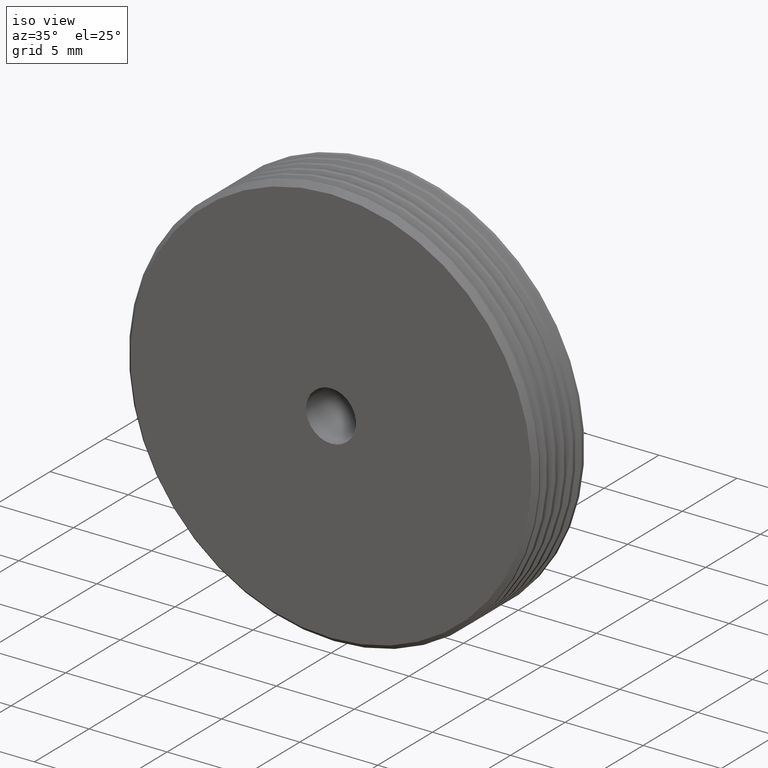
[diagram: clean part render]
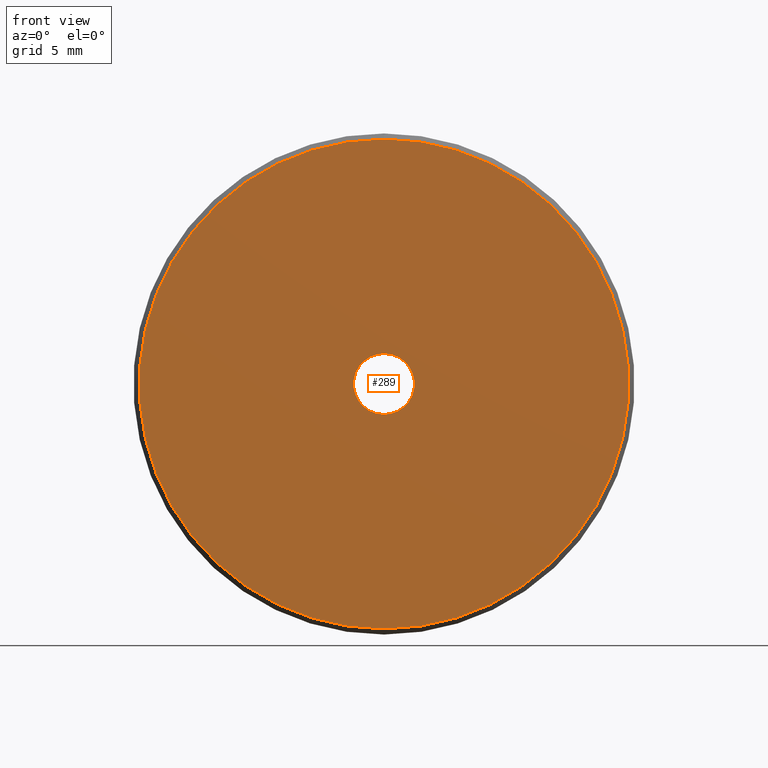
[diagram: tour spotlight — one face highlighted and labeled with its STEP entity id]
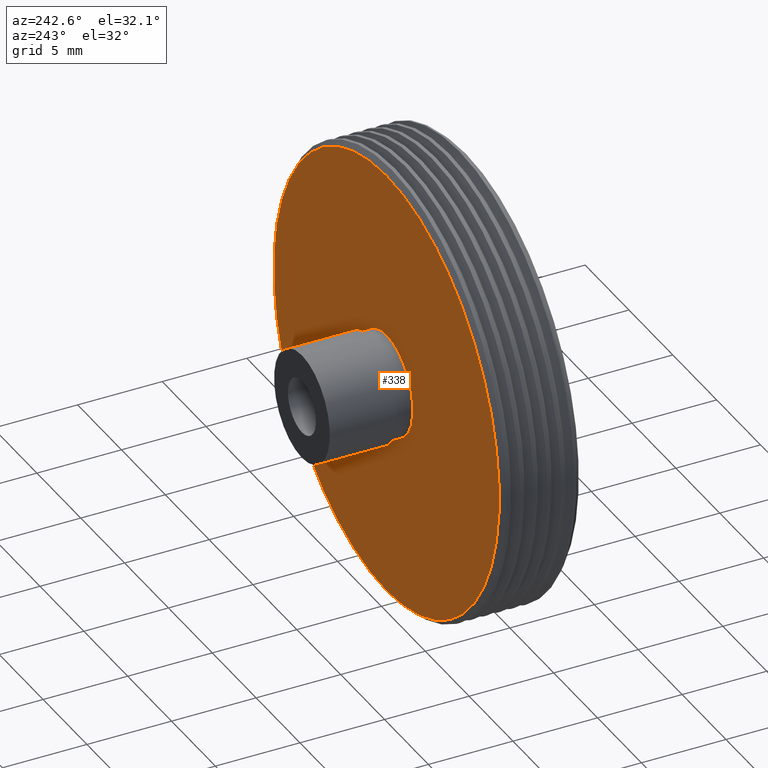
[diagram: tour spotlight — one face highlighted and labeled with its STEP entity id]
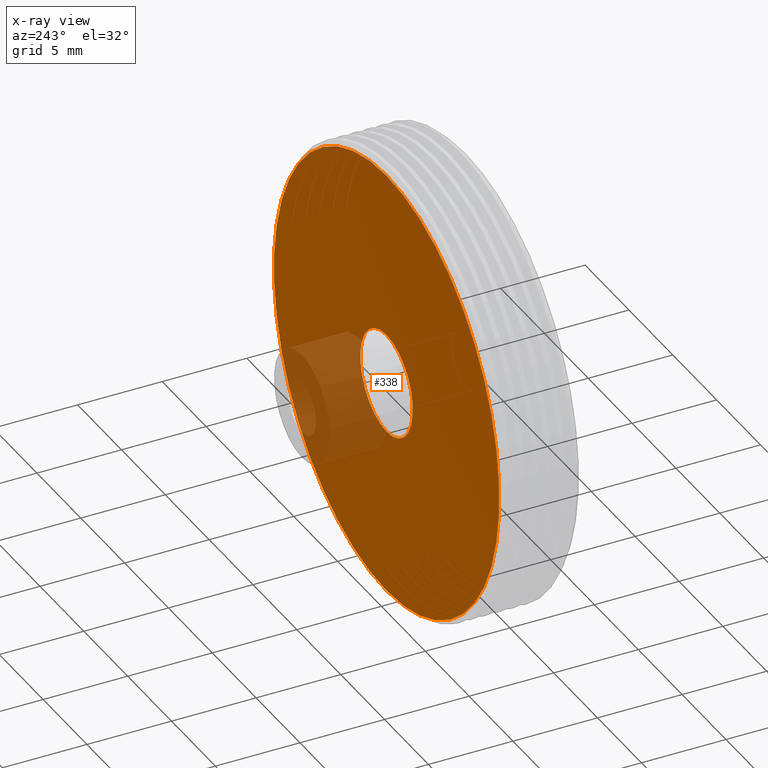
[diagram: x-ray of the same camera — body ghosted, this tour face saturated]
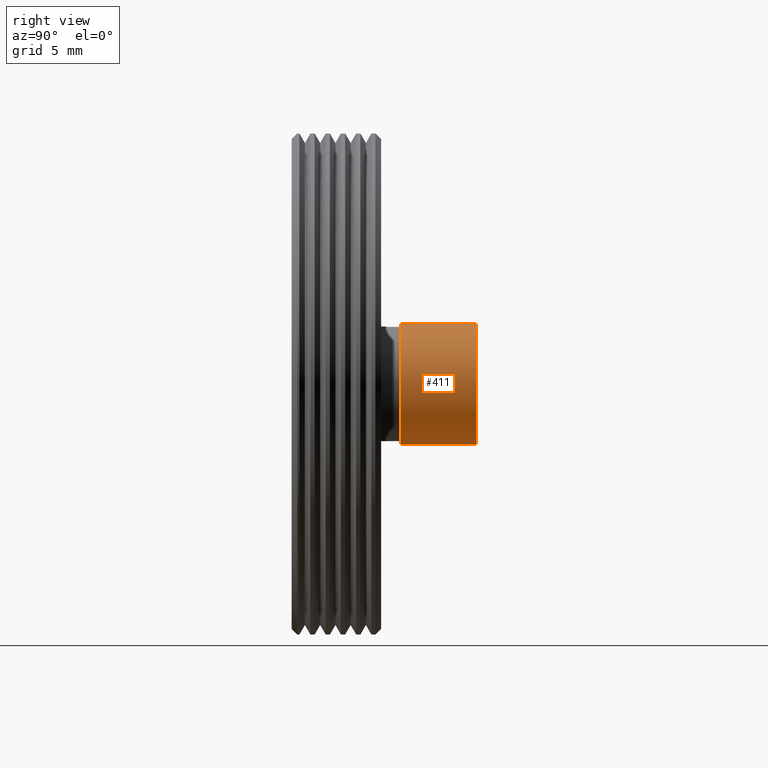
[diagram: tour spotlight — one face highlighted and labeled with its STEP entity id]
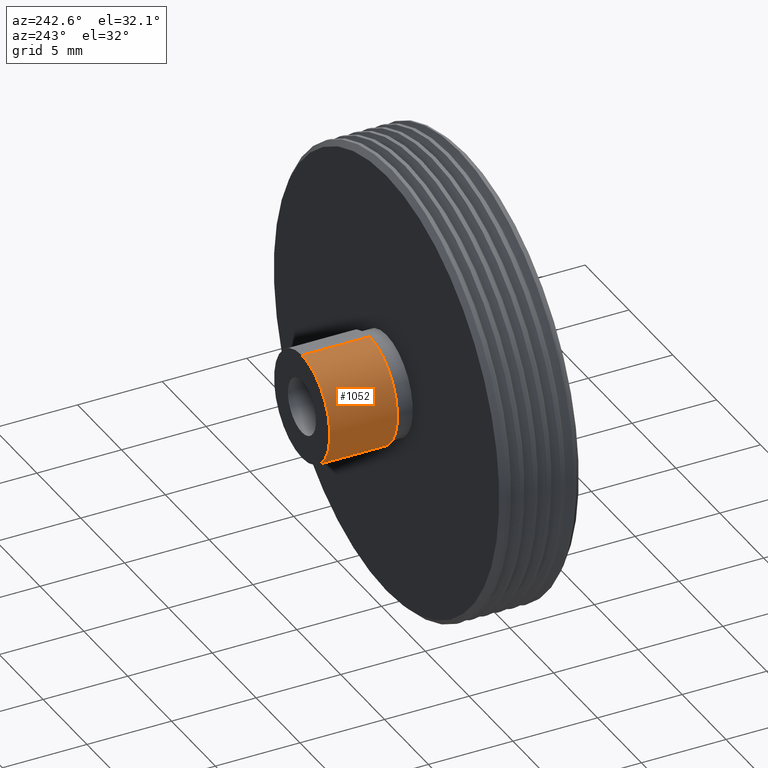
[diagram: tour spotlight — one face highlighted and labeled with its STEP entity id]
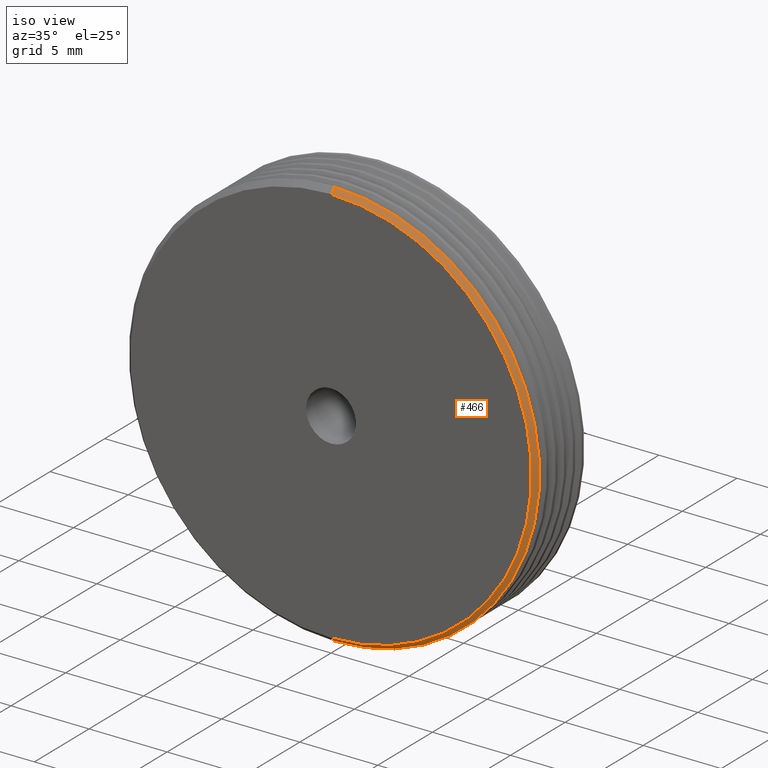
[diagram: tour spotlight — one face highlighted and labeled with its STEP entity id]
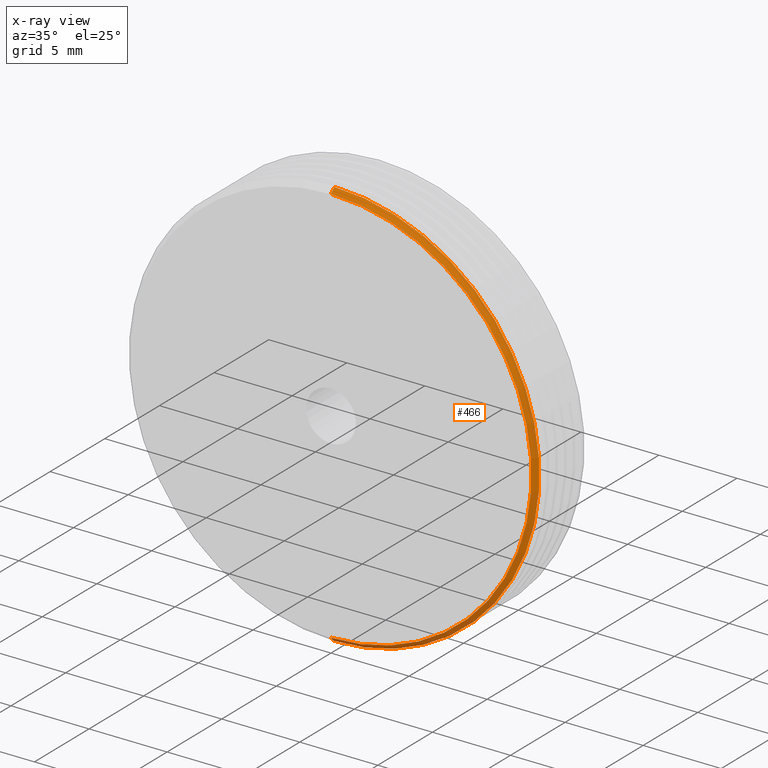
[diagram: x-ray of the same camera — body ghosted, this tour face saturated]
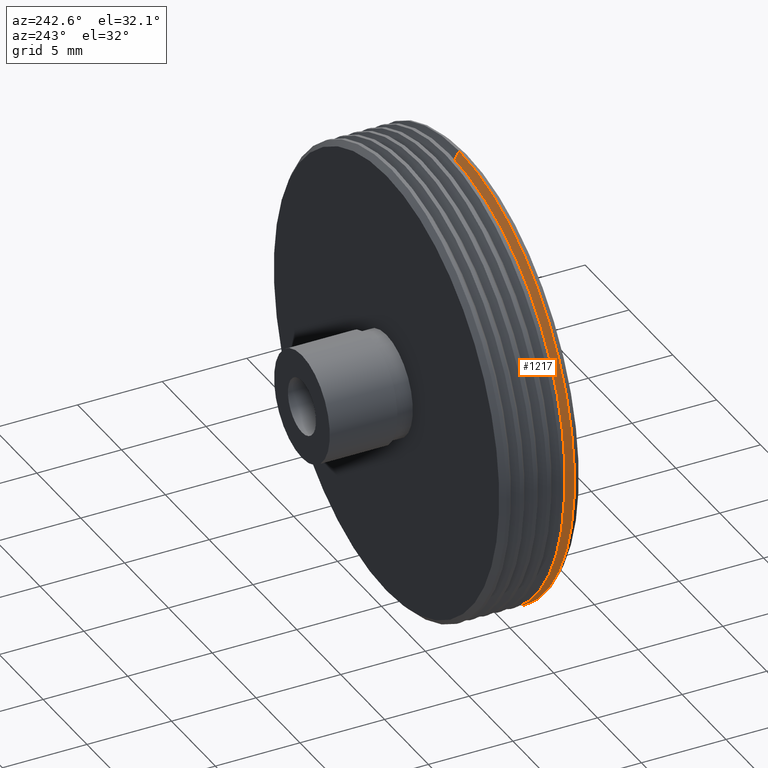
[diagram: tour spotlight — one face highlighted and labeled with its STEP entity id]
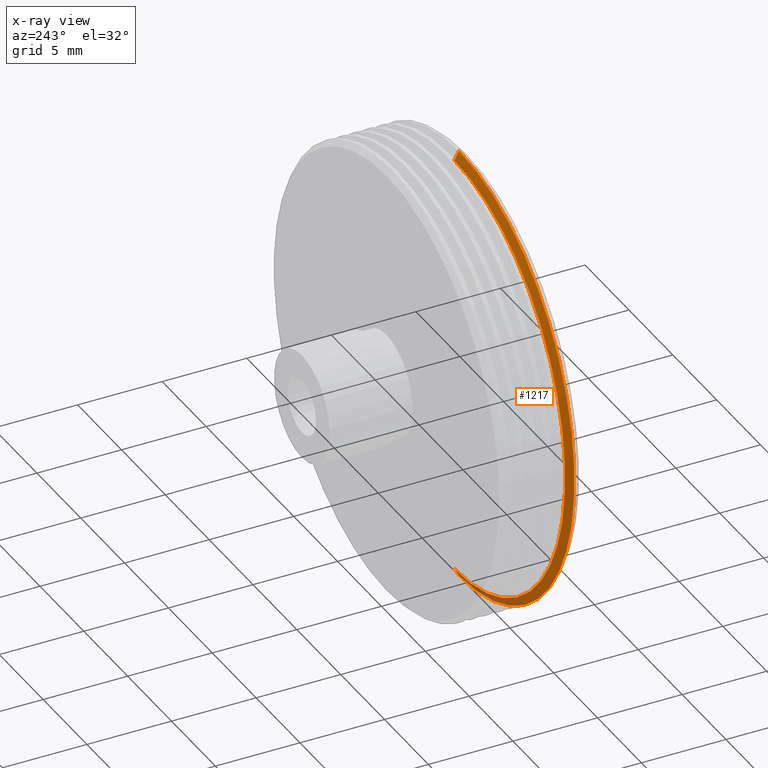
[diagram: x-ray of the same camera — body ghosted, this tour face saturated]
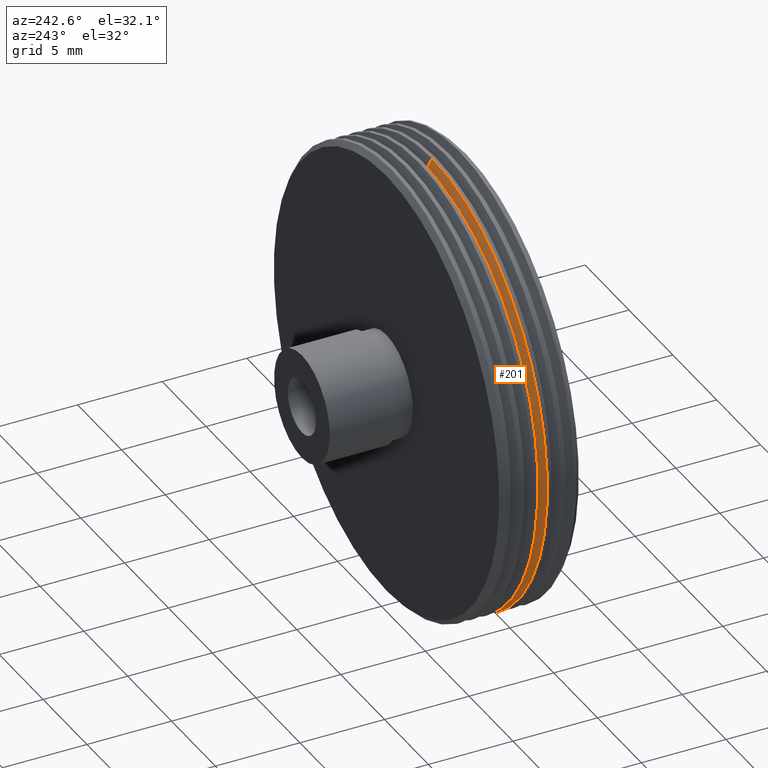
[diagram: tour spotlight — one face highlighted and labeled with its STEP entity id]
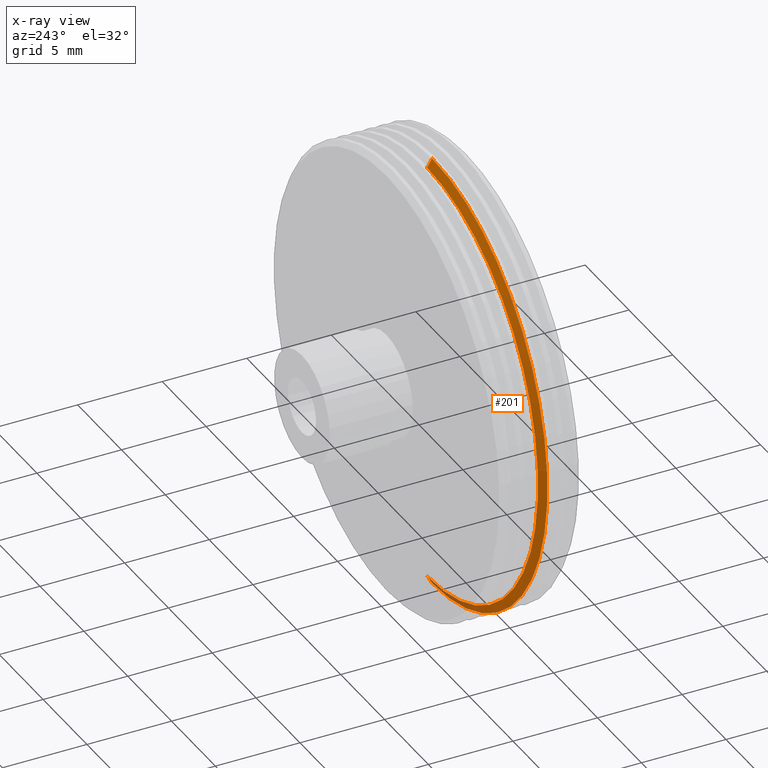
[diagram: x-ray of the same camera — body ghosted, this tour face saturated]
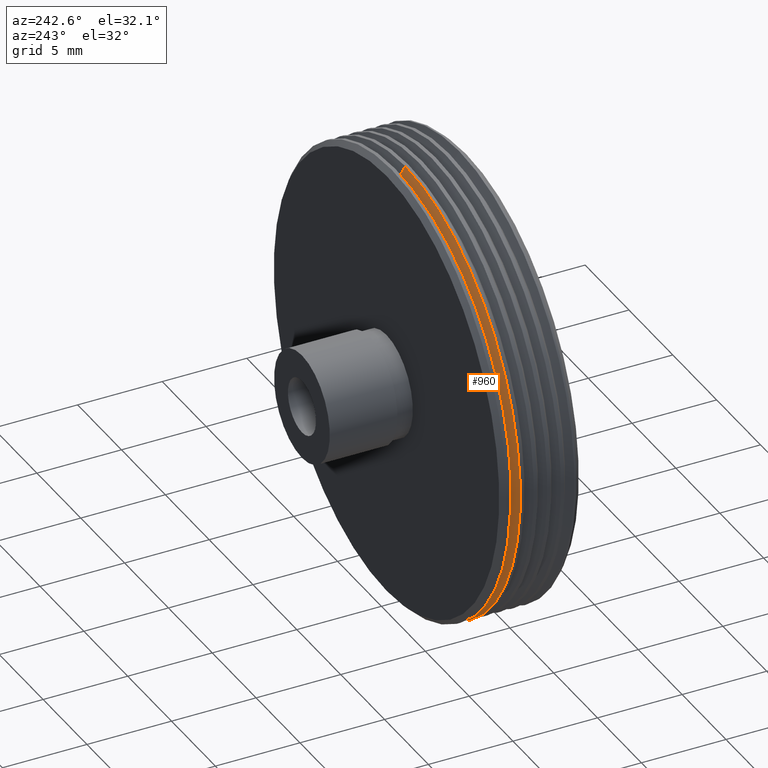
[diagram: tour spotlight — one face highlighted and labeled with its STEP entity id]
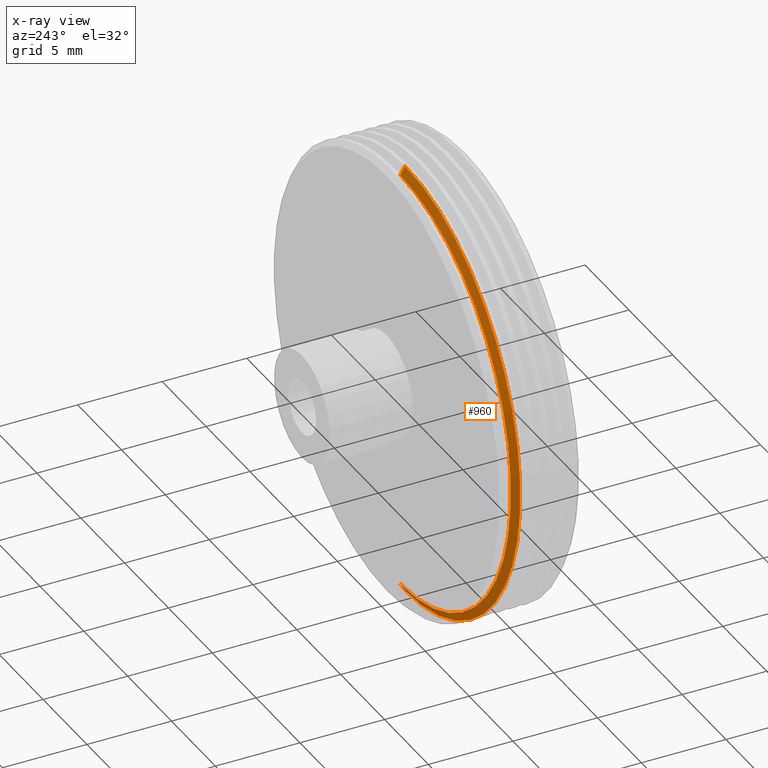
[diagram: x-ray of the same camera — body ghosted, this tour face saturated]
A machine part: a face-by-face anatomy tour. The part has 46 B-rep faces; the first image is the clean iso view, then the 8 largest visible faces are spotlighted one at a time (largest first), each with its STEP entity span.

Face 1 — front view, entity #289. In plain terms, the highlighted planar face has unit normal (-0, 1, 0).
Definition (entity closure, byte-faithful):
#41 = CARTESIAN_POINT ( 'NONE',  ( 0.000000000000000000, 0.000000000000000000, -1.600000000000000089 ) ) ;
#91 = ORIENTED_EDGE ( 'NONE', *, *, #1091, .T. ) ;
#135 = AXIS2_PLACEMENT_3D ( 'NONE', #1154, #1241, #271 ) ;
#172 = VERTEX_POINT ( 'NONE', #500 ) ;
#174 = CIRCLE ( 'NONE', #1046, 12.85000000000000675 ) ;
#195 = EDGE_CURVE ( 'NONE', #172, #242, #956, .T. ) ;
#240 = ORIENTED_EDGE ( 'NONE', *, *, #571, .T. ) ;
#242 = VERTEX_POINT ( 'NONE', #41 ) ;
#271 = DIRECTION ( 'NONE',  ( 0.000000000000000000, 0.000000000000000000, -1.000000000000000000 ) ) ;
#289 = ADVANCED_FACE ( 'NONE', ( #416, #995 ), #614, .F. ) ;
#328 = AXIS2_PLACEMENT_3D ( 'NONE', #506, #1011, #1198 ) ;
#343 = ORIENTED_EDGE ( 'NONE', *, *, #865, .F. ) ;
#385 = VERTEX_POINT ( 'NONE', #1025 ) ;
#389 = CARTESIAN_POINT ( 'NONE',  ( 0.000000000000000000, 0.000000000000000000, 0.000000000000000000 ) ) ;
#405 = AXIS2_PLACEMENT_3D ( 'NONE', #678, #788, #1071 ) ;
#416 = FACE_OUTER_BOUND ( 'NONE', #1227, .T. ) ;
#500 = CARTESIAN_POINT ( 'NONE',  ( 1.959434878635765230E-16, 0.000000000000000000, 1.600000000000000089 ) ) ;
#501 = VERTEX_POINT ( 'NONE', #1160 ) ;
#506 = CARTESIAN_POINT ( 'NONE',  ( 0.000000000000000000, 0.000000000000000000, 0.000000000000000000 ) ) ;
#570 = CIRCLE ( 'NONE', #135, 1.600000000000000089 ) ;
#571 = EDGE_CURVE ( 'NONE', #501, #385, #800, .T. ) ;
#614 = PLANE ( 'NONE',  #328 ) ;
#678 = CARTESIAN_POINT ( 'NONE',  ( 0.000000000000000000, 0.000000000000000000, 0.000000000000000000 ) ) ;
#760 = DIRECTION ( 'NONE',  ( 0.000000000000000000, -1.000000000000000000, 0.000000000000000000 ) ) ;
#784 = CARTESIAN_POINT ( 'NONE',  ( 0.000000000000000000, 0.000000000000000000, 0.000000000000000000 ) ) ;
#788 = DIRECTION ( 'NONE',  ( 0.000000000000000000, -1.000000000000000000, 0.000000000000000000 ) ) ;
#800 = CIRCLE ( 'NONE', #1192, 12.85000000000000675 ) ;
#865 = EDGE_CURVE ( 'NONE', #242, #172, #570, .T. ) ;
#888 = DIRECTION ( 'NONE',  ( 0.000000000000000000, 0.000000000000000000, 1.000000000000000000 ) ) ;
#904 = ORIENTED_EDGE ( 'NONE', *, *, #195, .F. ) ;
#915 = EDGE_LOOP ( 'NONE', ( #343, #904 ) ) ;
#956 = CIRCLE ( 'NONE', #405, 1.600000000000000089 ) ;
#995 = FACE_BOUND ( 'NONE', #915, .T. ) ;
#1011 = DIRECTION ( 'NONE',  ( -0.000000000000000000, 1.000000000000000000, 0.000000000000000000 ) ) ;
#1025 = CARTESIAN_POINT ( 'NONE',  ( 1.592040838891559884E-15, 0.000000000000000000, -12.85000000000000675 ) ) ;
#1046 = AXIS2_PLACEMENT_3D ( 'NONE', #784, #1077, #888 ) ;
#1071 = DIRECTION ( 'NONE',  ( 0.000000000000000000, 0.000000000000000000, -1.000000000000000000 ) ) ;
#1077 = DIRECTION ( 'NONE',  ( 0.000000000000000000, -1.000000000000000000, 0.000000000000000000 ) ) ;
#1091 = EDGE_CURVE ( 'NONE', #385, #501, #174, .T. ) ;
#1154 = CARTESIAN_POINT ( 'NONE',  ( 0.000000000000000000, 0.000000000000000000, 0.000000000000000000 ) ) ;
#1155 = DIRECTION ( 'NONE',  ( 0.000000000000000000, 0.000000000000000000, 1.000000000000000000 ) ) ;
#1160 = CARTESIAN_POINT ( 'NONE',  ( 0.000000000000000000, 0.000000000000000000, 12.85000000000000675 ) ) ;
#1192 = AXIS2_PLACEMENT_3D ( 'NONE', #389, #760, #1155 ) ;
#1198 = DIRECTION ( 'NONE',  ( 0.000000000000000000, 0.000000000000000000, 1.000000000000000000 ) ) ;
#1227 = EDGE_LOOP ( 'NONE', ( #240, #91 ) ) ;
#1241 = DIRECTION ( 'NONE',  ( 0.000000000000000000, -1.000000000000000000, 0.000000000000000000 ) ) ;

Face 2 — auxiliary view, entity #338. An x-ray twin of the same camera follows (body ghosted, this face saturated) — the face is partly hidden behind the body. In plain terms, the highlighted planar face has unit normal (0, -1, 0).
Definition (entity closure, byte-faithful):
#3 = CARTESIAN_POINT ( 'NONE',  ( 0.000000000000000000, 4.699999999999995737, 3.000000000000004441 ) ) ;
#9 = AXIS2_PLACEMENT_3D ( 'NONE', #358, #345, #252 ) ;
#30 = DIRECTION ( 'NONE',  ( 0.000000000000000000, 0.000000000000000000, -1.000000000000000000 ) ) ;
#58 = VERTEX_POINT ( 'NONE', #3 ) ;
#157 = FACE_OUTER_BOUND ( 'NONE', #497, .T. ) ;
#190 = DIRECTION ( 'NONE',  ( 0.000000000000000000, 0.000000000000000000, -1.000000000000000000 ) ) ;
#214 = CARTESIAN_POINT ( 'NONE',  ( 0.000000000000000000, 4.699999999999995737, 0.000000000000000000 ) ) ;
#235 = AXIS2_PLACEMENT_3D ( 'NONE', #214, #961, #591 ) ;
#252 = DIRECTION ( 'NONE',  ( 0.000000000000000000, -0.000000000000000000, -1.000000000000000000 ) ) ;
#296 = DIRECTION ( 'NONE',  ( -0.000000000000000000, 1.000000000000000000, -0.000000000000000000 ) ) ;
#306 = VERTEX_POINT ( 'NONE', #998 ) ;
#338 = ADVANCED_FACE ( 'NONE', ( #157, #1231 ), #1237, .F. ) ;
#345 = DIRECTION ( 'NONE',  ( 0.000000000000000000, -1.000000000000000000, 0.000000000000000000 ) ) ;
#352 = VERTEX_POINT ( 'NONE', #1128 ) ;
#358 = CARTESIAN_POINT ( 'NONE',  ( 6.175000000000003375, 4.699999999999999289, 0.000000000000000000 ) ) ;
#496 = EDGE_CURVE ( 'NONE', #306, #352, #1169, .T. ) ;
#497 = EDGE_LOOP ( 'NONE', ( #939, #891 ) ) ;
#503 = EDGE_CURVE ( 'NONE', #58, #1240, #609, .T. ) ;
#523 = CARTESIAN_POINT ( 'NONE',  ( 3.673940397442064798E-16, 4.699999999999995737, -3.000000000000004441 ) ) ;
#533 = AXIS2_PLACEMENT_3D ( 'NONE', #824, #994, #30 ) ;
#577 = DIRECTION ( 'NONE',  ( -0.000000000000000000, 1.000000000000000000, -0.000000000000000000 ) ) ;
#591 = DIRECTION ( 'NONE',  ( 0.000000000000000000, 0.000000000000000000, 1.000000000000000000 ) ) ;
#609 = CIRCLE ( 'NONE', #235, 3.000000000000004441 ) ;
#728 = ORIENTED_EDGE ( 'NONE', *, *, #908, .F. ) ;
#786 = EDGE_CURVE ( 'NONE', #352, #306, #1152, .T. ) ;
#824 = CARTESIAN_POINT ( 'NONE',  ( 0.000000000000000000, 4.699999999999999289, 0.000000000000000000 ) ) ;
#828 = EDGE_LOOP ( 'NONE', ( #1180, #728 ) ) ;
#891 = ORIENTED_EDGE ( 'NONE', *, *, #496, .T. ) ;
#908 = EDGE_CURVE ( 'NONE', #1240, #58, #1084, .T. ) ;
#939 = ORIENTED_EDGE ( 'NONE', *, *, #786, .T. ) ;
#961 = DIRECTION ( 'NONE',  ( -0.000000000000000000, 1.000000000000000000, -0.000000000000000000 ) ) ;
#976 = CARTESIAN_POINT ( 'NONE',  ( 0.000000000000000000, 4.699999999999999289, 0.000000000000000000 ) ) ;
#994 = DIRECTION ( 'NONE',  ( -0.000000000000000000, 1.000000000000000000, -0.000000000000000000 ) ) ;
#998 = CARTESIAN_POINT ( 'NONE',  ( 1.592040838891559884E-15, 4.699999999999999289, 12.85000000000000675 ) ) ;
#1024 = AXIS2_PLACEMENT_3D ( 'NONE', #976, #577, #190 ) ;
#1050 = CARTESIAN_POINT ( 'NONE',  ( 0.000000000000000000, 4.699999999999995737, 0.000000000000000000 ) ) ;
#1063 = DIRECTION ( 'NONE',  ( 0.000000000000000000, 0.000000000000000000, 1.000000000000000000 ) ) ;
#1084 = CIRCLE ( 'NONE', #1104, 3.000000000000004441 ) ;
#1104 = AXIS2_PLACEMENT_3D ( 'NONE', #1050, #296, #1063 ) ;
#1128 = CARTESIAN_POINT ( 'NONE',  ( 0.000000000000000000, 4.699999999999999289, -12.85000000000000675 ) ) ;
#1152 = CIRCLE ( 'NONE', #533, 12.85000000000000675 ) ;
#1169 = CIRCLE ( 'NONE', #1024, 12.85000000000000675 ) ;
#1180 = ORIENTED_EDGE ( 'NONE', *, *, #503, .F. ) ;
#1231 = FACE_BOUND ( 'NONE', #828, .T. ) ;
#1237 = PLANE ( 'NONE',  #9 ) ;
#1240 = VERTEX_POINT ( 'NONE', #523 ) ;

Face 3 — right view, entity #411. In plain terms, the highlighted cylindrical surface (partial cylindrical patch) has radius 3.175 mm, axis along (-0, 1, -0).
Definition (entity closure, byte-faithful):
#89 = LINE ( 'NONE', #169, #90 ) ;
#90 = VECTOR ( 'NONE', #546, 1000.000000000000000 ) ;
#169 = CARTESIAN_POINT ( 'NONE',  ( 3.888253587292851505E-16, 41.06170623995065938, -3.175000000000004263 ) ) ;
#177 = DIRECTION ( 'NONE',  ( 0.000000000000000000, 0.000000000000000000, 1.000000000000000000 ) ) ;
#202 = DIRECTION ( 'NONE',  ( 0.000000000000000000, 0.000000000000000000, 1.000000000000000000 ) ) ;
#233 = ORIENTED_EDGE ( 'NONE', *, *, #839, .T. ) ;
#265 = VERTEX_POINT ( 'NONE', #1017 ) ;
#275 = VERTEX_POINT ( 'NONE', #600 ) ;
#308 = DIRECTION ( 'NONE',  ( -0.000000000000000000, 1.000000000000000000, -0.000000000000000000 ) ) ;
#351 = EDGE_CURVE ( 'NONE', #846, #275, #89, .T. ) ;
#382 = DIRECTION ( 'NONE',  ( -0.000000000000000000, 1.000000000000000000, -0.000000000000000000 ) ) ;
#411 = ADVANCED_FACE ( 'NONE', ( #850 ), #634, .T. ) ;
#430 = EDGE_LOOP ( 'NONE', ( #233, #808, #1235, #484 ) ) ;
#451 = AXIS2_PLACEMENT_3D ( 'NONE', #855, #382, #758 ) ;
#481 = EDGE_CURVE ( 'NONE', #1099, #265, #482, .T. ) ;
#482 = LINE ( 'NONE', #971, #755 ) ;
#484 = ORIENTED_EDGE ( 'NONE', *, *, #481, .F. ) ;
#527 = CIRCLE ( 'NONE', #1026, 3.175000000000004263 ) ;
#546 = DIRECTION ( 'NONE',  ( -0.000000000000000000, 1.000000000000000000, -0.000000000000000000 ) ) ;
#600 = CARTESIAN_POINT ( 'NONE',  ( 3.888253587292851505E-16, 9.700000000000001066, -3.175000000000004263 ) ) ;
#630 = EDGE_CURVE ( 'NONE', #265, #275, #527, .T. ) ;
#634 = CYLINDRICAL_SURFACE ( 'NONE', #654, 3.175000000000004263 ) ;
#654 = AXIS2_PLACEMENT_3D ( 'NONE', #1033, #737, #177 ) ;
#692 = CIRCLE ( 'NONE', #451, 3.175000000000004263 ) ;
#737 = DIRECTION ( 'NONE',  ( -0.000000000000000000, 1.000000000000000000, -0.000000000000000000 ) ) ;
#755 = VECTOR ( 'NONE', #308, 1000.000000000000000 ) ;
#758 = DIRECTION ( 'NONE',  ( 0.000000000000000000, 0.000000000000000000, 1.000000000000000000 ) ) ;
#808 = ORIENTED_EDGE ( 'NONE', *, *, #351, .T. ) ;
#839 = EDGE_CURVE ( 'NONE', #1099, #846, #692, .T. ) ;
#846 = VERTEX_POINT ( 'NONE', #1248 ) ;
#850 = FACE_OUTER_BOUND ( 'NONE', #430, .T. ) ;
#855 = CARTESIAN_POINT ( 'NONE',  ( 0.000000000000000000, 5.699999999999996625, 0.000000000000000000 ) ) ;
#884 = CARTESIAN_POINT ( 'NONE',  ( 0.000000000000000000, 9.700000000000001066, 0.000000000000000000 ) ) ;
#892 = CARTESIAN_POINT ( 'NONE',  ( 0.000000000000000000, 5.699999999999996625, 3.175000000000004263 ) ) ;
#971 = CARTESIAN_POINT ( 'NONE',  ( 0.000000000000000000, 41.06170623995065938, 3.175000000000004263 ) ) ;
#1017 = CARTESIAN_POINT ( 'NONE',  ( 0.000000000000000000, 9.700000000000001066, 3.175000000000004263 ) ) ;
#1026 = AXIS2_PLACEMENT_3D ( 'NONE', #884, #1070, #202 ) ;
#1033 = CARTESIAN_POINT ( 'NONE',  ( 0.000000000000000000, 41.06170623995065938, 0.000000000000000000 ) ) ;
#1070 = DIRECTION ( 'NONE',  ( -0.000000000000000000, 1.000000000000000000, -0.000000000000000000 ) ) ;
#1099 = VERTEX_POINT ( 'NONE', #892 ) ;
#1235 = ORIENTED_EDGE ( 'NONE', *, *, #630, .F. ) ;
#1248 = CARTESIAN_POINT ( 'NONE',  ( 3.888253587292851505E-16, 5.699999999999996625, -3.175000000000004263 ) ) ;

Face 4 — auxiliary view, entity #1052. In plain terms, the highlighted cylindrical surface (partial cylindrical patch) has radius 3.175 mm, axis along (-0, 1, -0).
Definition (entity closure, byte-faithful):
#54 = AXIS2_PLACEMENT_3D ( 'NONE', #57, #1122, #905 ) ;
#57 = CARTESIAN_POINT ( 'NONE',  ( 0.000000000000000000, 5.699999999999996625, 0.000000000000000000 ) ) ;
#89 = LINE ( 'NONE', #169, #90 ) ;
#90 = VECTOR ( 'NONE', #546, 1000.000000000000000 ) ;
#112 = DIRECTION ( 'NONE',  ( -0.000000000000000000, 1.000000000000000000, -0.000000000000000000 ) ) ;
#121 = DIRECTION ( 'NONE',  ( 0.000000000000000000, 0.000000000000000000, 1.000000000000000000 ) ) ;
#132 = CARTESIAN_POINT ( 'NONE',  ( 0.000000000000000000, 41.06170623995065938, 0.000000000000000000 ) ) ;
#169 = CARTESIAN_POINT ( 'NONE',  ( 3.888253587292851505E-16, 41.06170623995065938, -3.175000000000004263 ) ) ;
#258 = AXIS2_PLACEMENT_3D ( 'NONE', #132, #112, #121 ) ;
#265 = VERTEX_POINT ( 'NONE', #1017 ) ;
#275 = VERTEX_POINT ( 'NONE', #600 ) ;
#308 = DIRECTION ( 'NONE',  ( -0.000000000000000000, 1.000000000000000000, -0.000000000000000000 ) ) ;
#351 = EDGE_CURVE ( 'NONE', #846, #275, #89, .T. ) ;
#362 = DIRECTION ( 'NONE',  ( 0.000000000000000000, 0.000000000000000000, 1.000000000000000000 ) ) ;
#381 = ORIENTED_EDGE ( 'NONE', *, *, #351, .F. ) ;
#475 = AXIS2_PLACEMENT_3D ( 'NONE', #1236, #646, #362 ) ;
#481 = EDGE_CURVE ( 'NONE', #1099, #265, #482, .T. ) ;
#482 = LINE ( 'NONE', #971, #755 ) ;
#513 = EDGE_LOOP ( 'NONE', ( #381, #735, #611, #745 ) ) ;
#546 = DIRECTION ( 'NONE',  ( -0.000000000000000000, 1.000000000000000000, -0.000000000000000000 ) ) ;
#600 = CARTESIAN_POINT ( 'NONE',  ( 3.888253587292851505E-16, 9.700000000000001066, -3.175000000000004263 ) ) ;
#611 = ORIENTED_EDGE ( 'NONE', *, *, #481, .T. ) ;
#646 = DIRECTION ( 'NONE',  ( -0.000000000000000000, 1.000000000000000000, -0.000000000000000000 ) ) ;
#675 = CIRCLE ( 'NONE', #54, 3.175000000000004263 ) ;
#680 = CYLINDRICAL_SURFACE ( 'NONE', #258, 3.175000000000004263 ) ;
#685 = FACE_OUTER_BOUND ( 'NONE', #513, .T. ) ;
#735 = ORIENTED_EDGE ( 'NONE', *, *, #1145, .T. ) ;
#745 = ORIENTED_EDGE ( 'NONE', *, *, #825, .F. ) ;
#755 = VECTOR ( 'NONE', #308, 1000.000000000000000 ) ;
#825 = EDGE_CURVE ( 'NONE', #275, #265, #1250, .T. ) ;
#846 = VERTEX_POINT ( 'NONE', #1248 ) ;
#892 = CARTESIAN_POINT ( 'NONE',  ( 0.000000000000000000, 5.699999999999996625, 3.175000000000004263 ) ) ;
#905 = DIRECTION ( 'NONE',  ( 0.000000000000000000, 0.000000000000000000, 1.000000000000000000 ) ) ;
#971 = CARTESIAN_POINT ( 'NONE',  ( 0.000000000000000000, 41.06170623995065938, 3.175000000000004263 ) ) ;
#1017 = CARTESIAN_POINT ( 'NONE',  ( 0.000000000000000000, 9.700000000000001066, 3.175000000000004263 ) ) ;
#1052 = ADVANCED_FACE ( 'NONE', ( #685 ), #680, .T. ) ;
#1099 = VERTEX_POINT ( 'NONE', #892 ) ;
#1122 = DIRECTION ( 'NONE',  ( -0.000000000000000000, 1.000000000000000000, -0.000000000000000000 ) ) ;
#1145 = EDGE_CURVE ( 'NONE', #846, #1099, #675, .T. ) ;
#1236 = CARTESIAN_POINT ( 'NONE',  ( 0.000000000000000000, 9.700000000000001066, 0.000000000000000000 ) ) ;
#1248 = CARTESIAN_POINT ( 'NONE',  ( 3.888253587292851505E-16, 5.699999999999996625, -3.175000000000004263 ) ) ;
#1250 = CIRCLE ( 'NONE', #475, 3.175000000000004263 ) ;

Face 5 — iso view, entity #466. An x-ray twin of the same camera follows (body ghosted, this face saturated) — the face is partly hidden behind the body. In plain terms, the highlighted conical surface has half-angle 45 deg.
Definition (entity closure, byte-faithful):
#12 = DIRECTION ( 'NONE',  ( 0.000000000000000000, 0.000000000000000000, 1.000000000000000000 ) ) ;
#108 = DIRECTION ( 'NONE',  ( -0.000000000000000000, 1.000000000000000000, -0.000000000000000000 ) ) ;
#163 = EDGE_LOOP ( 'NONE', ( #212, #697, #1013, #1027 ) ) ;
#174 = CIRCLE ( 'NONE', #1046, 12.85000000000000675 ) ;
#207 = CARTESIAN_POINT ( 'NONE',  ( 0.000000000000000000, 0.2999999999999947153, 0.000000000000000000 ) ) ;
#212 = ORIENTED_EDGE ( 'NONE', *, *, #1091, .F. ) ;
#215 = AXIS2_PLACEMENT_3D ( 'NONE', #1211, #1216, #959 ) ;
#260 = CARTESIAN_POINT ( 'NONE',  ( 0.000000000000000000, 0.2999999999999947153, 13.15000000000000568 ) ) ;
#376 = EDGE_CURVE ( 'NONE', #385, #436, #1039, .T. ) ;
#385 = VERTEX_POINT ( 'NONE', #1025 ) ;
#436 = VERTEX_POINT ( 'NONE', #935 ) ;
#466 = ADVANCED_FACE ( 'NONE', ( #1178 ), #841, .T. ) ;
#501 = VERTEX_POINT ( 'NONE', #1160 ) ;
#525 = LINE ( 'NONE', #260, #1187 ) ;
#528 = AXIS2_PLACEMENT_3D ( 'NONE', #207, #108, #12 ) ;
#552 = CARTESIAN_POINT ( 'NONE',  ( 1.610410540878770117E-15, 0.2999999999999947153, -13.15000000000000568 ) ) ;
#590 = VECTOR ( 'NONE', #832, 999.9999999999998863 ) ;
#593 = CIRCLE ( 'NONE', #215, 13.15000000000000568 ) ;
#618 = DIRECTION ( 'NONE',  ( 0.000000000000000000, 0.7071067811865435759, 0.7071067811865515695 ) ) ;
#647 = EDGE_CURVE ( 'NONE', #501, #806, #525, .T. ) ;
#663 = CARTESIAN_POINT ( 'NONE',  ( 0.000000000000000000, 0.2999999999999947153, 13.15000000000000568 ) ) ;
#697 = ORIENTED_EDGE ( 'NONE', *, *, #376, .T. ) ;
#784 = CARTESIAN_POINT ( 'NONE',  ( 0.000000000000000000, 0.000000000000000000, 0.000000000000000000 ) ) ;
#799 = EDGE_CURVE ( 'NONE', #806, #436, #593, .T. ) ;
#806 = VERTEX_POINT ( 'NONE', #663 ) ;
#832 = DIRECTION ( 'NONE',  ( 8.659560562354983395E-17, 0.7071067811865435759, -0.7071067811865515695 ) ) ;
#841 = CONICAL_SURFACE ( 'NONE', #528, 13.15000000000000568, 0.7853981633974540522 ) ;
#888 = DIRECTION ( 'NONE',  ( 0.000000000000000000, 0.000000000000000000, 1.000000000000000000 ) ) ;
#935 = CARTESIAN_POINT ( 'NONE',  ( 1.610410540878770117E-15, 0.2999999999999947153, -13.15000000000000568 ) ) ;
#959 = DIRECTION ( 'NONE',  ( 0.000000000000000000, 0.000000000000000000, 1.000000000000000000 ) ) ;
#1013 = ORIENTED_EDGE ( 'NONE', *, *, #799, .F. ) ;
#1025 = CARTESIAN_POINT ( 'NONE',  ( 1.592040838891559884E-15, 0.000000000000000000, -12.85000000000000675 ) ) ;
#1027 = ORIENTED_EDGE ( 'NONE', *, *, #647, .F. ) ;
#1039 = LINE ( 'NONE', #552, #590 ) ;
#1046 = AXIS2_PLACEMENT_3D ( 'NONE', #784, #1077, #888 ) ;
#1077 = DIRECTION ( 'NONE',  ( 0.000000000000000000, -1.000000000000000000, 0.000000000000000000 ) ) ;
#1091 = EDGE_CURVE ( 'NONE', #385, #501, #174, .T. ) ;
#1160 = CARTESIAN_POINT ( 'NONE',  ( 0.000000000000000000, 0.000000000000000000, 12.85000000000000675 ) ) ;
#1178 = FACE_OUTER_BOUND ( 'NONE', #163, .T. ) ;
#1187 = VECTOR ( 'NONE', #618, 999.9999999999998863 ) ;
#1211 = CARTESIAN_POINT ( 'NONE',  ( 0.000000000000000000, 0.2999999999999947153, 0.000000000000000000 ) ) ;
#1216 = DIRECTION ( 'NONE',  ( -0.000000000000000000, 1.000000000000000000, -0.000000000000000000 ) ) ;

Face 6 — auxiliary view, entity #1217. An x-ray twin of the same camera follows (body ghosted, this face saturated) — the face is partly hidden behind the body. In plain terms, the highlighted conical surface has half-angle 60 deg.
Definition (entity closure, byte-faithful):
#53 = DIRECTION ( 'NONE',  ( -0.000000000000000000, 1.000000000000000000, -0.000000000000000000 ) ) ;
#64 = DIRECTION ( 'NONE',  ( 0.000000000000000000, 0.000000000000000000, -1.000000000000000000 ) ) ;
#65 = EDGE_LOOP ( 'NONE', ( #623, #282, #560, #651 ) ) ;
#115 = EDGE_CURVE ( 'NONE', #984, #273, #198, .T. ) ;
#198 = LINE ( 'NONE', #288, #208 ) ;
#208 = VECTOR ( 'NONE', #406, 1000.000000000000000 ) ;
#249 = FACE_OUTER_BOUND ( 'NONE', #65, .T. ) ;
#261 = AXIS2_PLACEMENT_3D ( 'NONE', #612, #829, #64 ) ;
#273 = VERTEX_POINT ( 'NONE', #604 ) ;
#282 = ORIENTED_EDGE ( 'NONE', *, *, #639, .F. ) ;
#288 = CARTESIAN_POINT ( 'NONE',  ( 0.000000000000000000, 0.6999999999999992895, -12.65000000000000036 ) ) ;
#293 = CARTESIAN_POINT ( 'NONE',  ( 1.549178200921401754E-15, 0.6999999999999992895, 12.65000000000000036 ) ) ;
#327 = CARTESIAN_POINT ( 'NONE',  ( 0.000000000000000000, 0.4113248654051835373, 0.000000000000000000 ) ) ;
#401 = VERTEX_POINT ( 'NONE', #441 ) ;
#406 = DIRECTION ( 'NONE',  ( 0.000000000000000000, -0.4999999999999995004, -0.8660254037844389297 ) ) ;
#441 = CARTESIAN_POINT ( 'NONE',  ( 0.000000000000000000, 0.4113248654051835373, 13.15000000000000568 ) ) ;
#472 = CIRCLE ( 'NONE', #494, 12.65000000000000036 ) ;
#494 = AXIS2_PLACEMENT_3D ( 'NONE', #836, #53, #1032 ) ;
#545 = EDGE_CURVE ( 'NONE', #662, #401, #871, .T. ) ;
#560 = ORIENTED_EDGE ( 'NONE', *, *, #115, .T. ) ;
#604 = CARTESIAN_POINT ( 'NONE',  ( 1.610410540878770117E-15, 0.4113248654051835373, -13.15000000000000568 ) ) ;
#612 = CARTESIAN_POINT ( 'NONE',  ( 0.000000000000000000, 0.6999999999999992895, 0.000000000000000000 ) ) ;
#623 = ORIENTED_EDGE ( 'NONE', *, *, #545, .F. ) ;
#639 = EDGE_CURVE ( 'NONE', #984, #662, #472, .T. ) ;
#651 = ORIENTED_EDGE ( 'NONE', *, *, #1199, .T. ) ;
#662 = VERTEX_POINT ( 'NONE', #1021 ) ;
#706 = DIRECTION ( 'NONE',  ( -0.000000000000000000, 1.000000000000000000, -0.000000000000000000 ) ) ;
#709 = AXIS2_PLACEMENT_3D ( 'NONE', #327, #706, #1102 ) ;
#757 = CONICAL_SURFACE ( 'NONE', #261, 12.65000000000000036, 1.047197551196598297 ) ;
#829 = DIRECTION ( 'NONE',  ( 0.000000000000000000, -1.000000000000000000, 0.000000000000000000 ) ) ;
#836 = CARTESIAN_POINT ( 'NONE',  ( 0.000000000000000000, 0.6999999999999992895, 0.000000000000000000 ) ) ;
#862 = CIRCLE ( 'NONE', #709, 13.15000000000000568 ) ;
#871 = LINE ( 'NONE', #293, #1022 ) ;
#974 = CARTESIAN_POINT ( 'NONE',  ( 1.579794370900085936E-15, 0.6999999999999992895, -12.65000000000000036 ) ) ;
#984 = VERTEX_POINT ( 'NONE', #974 ) ;
#1021 = CARTESIAN_POINT ( 'NONE',  ( 0.000000000000000000, 0.6999999999999992895, 12.65000000000000036 ) ) ;
#1022 = VECTOR ( 'NONE', #1074, 1000.000000000000000 ) ;
#1032 = DIRECTION ( 'NONE',  ( 0.000000000000000000, 0.000000000000000000, 1.000000000000000000 ) ) ;
#1074 = DIRECTION ( 'NONE',  ( 1.060575238724907285E-16, -0.4999999999999995004, 0.8660254037844389297 ) ) ;
#1102 = DIRECTION ( 'NONE',  ( 0.000000000000000000, 0.000000000000000000, -1.000000000000000000 ) ) ;
#1199 = EDGE_CURVE ( 'NONE', #273, #401, #862, .T. ) ;
#1217 = ADVANCED_FACE ( 'NONE', ( #249 ), #757, .T. ) ;

Face 7 — auxiliary view, entity #201. An x-ray twin of the same camera follows (body ghosted, this face saturated) — the face is partly hidden behind the body. In plain terms, the highlighted conical surface has half-angle 60 deg.
Definition (entity closure, byte-faithful):
#17 = VERTEX_POINT ( 'NONE', #949 ) ;
#76 = CIRCLE ( 'NONE', #1107, 12.65000000000000036 ) ;
#191 = CARTESIAN_POINT ( 'NONE',  ( 0.000000000000000000, 2.299999999999999822, 12.65000000000000036 ) ) ;
#193 = VERTEX_POINT ( 'NONE', #191 ) ;
#201 = ADVANCED_FACE ( 'NONE', ( #595 ), #565, .T. ) ;
#204 = EDGE_LOOP ( 'NONE', ( #756, #707, #1082, #821 ) ) ;
#298 = DIRECTION ( 'NONE',  ( -0.000000000000000000, 1.000000000000000000, -0.000000000000000000 ) ) ;
#390 = EDGE_CURVE ( 'NONE', #718, #954, #455, .T. ) ;
#404 = DIRECTION ( 'NONE',  ( -0.000000000000000000, 1.000000000000000000, -0.000000000000000000 ) ) ;
#427 = CARTESIAN_POINT ( 'NONE',  ( 1.579794370900085936E-15, 2.299999999999999822, -12.65000000000000036 ) ) ;
#455 = LINE ( 'NONE', #947, #798 ) ;
#502 = CARTESIAN_POINT ( 'NONE',  ( 1.610410540878770117E-15, 2.011324865405184070, -13.15000000000000568 ) ) ;
#504 = EDGE_CURVE ( 'NONE', #193, #17, #583, .T. ) ;
#535 = CARTESIAN_POINT ( 'NONE',  ( 0.000000000000000000, 2.299999999999999822, 0.000000000000000000 ) ) ;
#541 = DIRECTION ( 'NONE',  ( 0.000000000000000000, -0.4999999999999995004, -0.8660254037844389297 ) ) ;
#564 = AXIS2_PLACEMENT_3D ( 'NONE', #1080, #578, #977 ) ;
#565 = CONICAL_SURFACE ( 'NONE', #564, 12.65000000000000036, 1.047197551196598297 ) ;
#566 = DIRECTION ( 'NONE',  ( 0.000000000000000000, 0.000000000000000000, -1.000000000000000000 ) ) ;
#578 = DIRECTION ( 'NONE',  ( 0.000000000000000000, -1.000000000000000000, 0.000000000000000000 ) ) ;
#583 = LINE ( 'NONE', #773, #1127 ) ;
#595 = FACE_OUTER_BOUND ( 'NONE', #204, .T. ) ;
#607 = EDGE_CURVE ( 'NONE', #954, #17, #920, .T. ) ;
#664 = CARTESIAN_POINT ( 'NONE',  ( 0.000000000000000000, 2.011324865405184070, 0.000000000000000000 ) ) ;
#696 = EDGE_CURVE ( 'NONE', #718, #193, #76, .T. ) ;
#707 = ORIENTED_EDGE ( 'NONE', *, *, #696, .F. ) ;
#711 = AXIS2_PLACEMENT_3D ( 'NONE', #664, #298, #566 ) ;
#718 = VERTEX_POINT ( 'NONE', #427 ) ;
#756 = ORIENTED_EDGE ( 'NONE', *, *, #504, .F. ) ;
#773 = CARTESIAN_POINT ( 'NONE',  ( 1.549178200921401754E-15, 2.299999999999999822, 12.65000000000000036 ) ) ;
#787 = DIRECTION ( 'NONE',  ( 1.060575238724907285E-16, -0.4999999999999995004, 0.8660254037844389297 ) ) ;
#798 = VECTOR ( 'NONE', #541, 1000.000000000000000 ) ;
#821 = ORIENTED_EDGE ( 'NONE', *, *, #607, .T. ) ;
#831 = DIRECTION ( 'NONE',  ( 0.000000000000000000, 0.000000000000000000, 1.000000000000000000 ) ) ;
#920 = CIRCLE ( 'NONE', #711, 13.15000000000000568 ) ;
#947 = CARTESIAN_POINT ( 'NONE',  ( 0.000000000000000000, 2.299999999999999822, -12.65000000000000036 ) ) ;
#949 = CARTESIAN_POINT ( 'NONE',  ( 0.000000000000000000, 2.011324865405184070, 13.15000000000000568 ) ) ;
#954 = VERTEX_POINT ( 'NONE', #502 ) ;
#977 = DIRECTION ( 'NONE',  ( 0.000000000000000000, 0.000000000000000000, -1.000000000000000000 ) ) ;
#1080 = CARTESIAN_POINT ( 'NONE',  ( 0.000000000000000000, 2.299999999999999822, 0.000000000000000000 ) ) ;
#1082 = ORIENTED_EDGE ( 'NONE', *, *, #390, .T. ) ;
#1107 = AXIS2_PLACEMENT_3D ( 'NONE', #535, #404, #831 ) ;
#1127 = VECTOR ( 'NONE', #787, 1000.000000000000000 ) ;

Face 8 — auxiliary view, entity #960. An x-ray twin of the same camera follows (body ghosted, this face saturated) — the face is partly hidden behind the body. In plain terms, the highlighted conical surface has half-angle 60 deg.
Definition (entity closure, byte-faithful):
#40 = VERTEX_POINT ( 'NONE', #1150 ) ;
#125 = DIRECTION ( 'NONE',  ( 1.060575238724907285E-16, -0.4999999999999995004, 0.8660254037844389297 ) ) ;
#146 = CARTESIAN_POINT ( 'NONE',  ( 0.000000000000000000, 3.900000000000000799, -12.65000000000000036 ) ) ;
#200 = DIRECTION ( 'NONE',  ( 0.000000000000000000, 0.000000000000000000, -1.000000000000000000 ) ) ;
#221 = FACE_OUTER_BOUND ( 'NONE', #1208, .T. ) ;
#241 = CARTESIAN_POINT ( 'NONE',  ( 1.610410540878770117E-15, 3.611324865405185047, -13.15000000000000568 ) ) ;
#250 = DIRECTION ( 'NONE',  ( 0.000000000000000000, -0.4999999999999995004, -0.8660254037844389297 ) ) ;
#255 = CARTESIAN_POINT ( 'NONE',  ( 0.000000000000000000, 3.900000000000000799, 0.000000000000000000 ) ) ;
#311 = CARTESIAN_POINT ( 'NONE',  ( 0.000000000000000000, 3.900000000000000799, 12.65000000000000036 ) ) ;
#347 = DIRECTION ( 'NONE',  ( 0.000000000000000000, 0.000000000000000000, 1.000000000000000000 ) ) ;
#375 = CIRCLE ( 'NONE', #626, 13.15000000000000568 ) ;
#490 = VECTOR ( 'NONE', #125, 1000.000000000000000 ) ;
#509 = AXIS2_PLACEMENT_3D ( 'NONE', #979, #587, #200 ) ;
#538 = DIRECTION ( 'NONE',  ( -0.000000000000000000, 1.000000000000000000, -0.000000000000000000 ) ) ;
#558 = DIRECTION ( 'NONE',  ( 0.000000000000000000, 0.000000000000000000, -1.000000000000000000 ) ) ;
#587 = DIRECTION ( 'NONE',  ( 0.000000000000000000, -1.000000000000000000, 0.000000000000000000 ) ) ;
#588 = VECTOR ( 'NONE', #250, 1000.000000000000000 ) ;
#626 = AXIS2_PLACEMENT_3D ( 'NONE', #863, #1259, #558 ) ;
#637 = ORIENTED_EDGE ( 'NONE', *, *, #1242, .F. ) ;
#649 = EDGE_CURVE ( 'NONE', #40, #1221, #928, .T. ) ;
#794 = ORIENTED_EDGE ( 'NONE', *, *, #1098, .F. ) ;
#802 = VERTEX_POINT ( 'NONE', #1159 ) ;
#818 = CIRCLE ( 'NONE', #1126, 12.65000000000000036 ) ;
#830 = ORIENTED_EDGE ( 'NONE', *, *, #649, .T. ) ;
#863 = CARTESIAN_POINT ( 'NONE',  ( 0.000000000000000000, 3.611324865405185047, 0.000000000000000000 ) ) ;
#872 = EDGE_CURVE ( 'NONE', #1221, #802, #375, .T. ) ;
#928 = LINE ( 'NONE', #146, #588 ) ;
#958 = VERTEX_POINT ( 'NONE', #311 ) ;
#960 = ADVANCED_FACE ( 'NONE', ( #221 ), #1190, .T. ) ;
#979 = CARTESIAN_POINT ( 'NONE',  ( 0.000000000000000000, 3.900000000000000799, 0.000000000000000000 ) ) ;
#993 = CARTESIAN_POINT ( 'NONE',  ( 1.549178200921401754E-15, 3.900000000000000799, 12.65000000000000036 ) ) ;
#1098 = EDGE_CURVE ( 'NONE', #958, #802, #1181, .T. ) ;
#1126 = AXIS2_PLACEMENT_3D ( 'NONE', #255, #538, #347 ) ;
#1150 = CARTESIAN_POINT ( 'NONE',  ( 1.579794370900085936E-15, 3.900000000000000799, -12.65000000000000036 ) ) ;
#1159 = CARTESIAN_POINT ( 'NONE',  ( 0.000000000000000000, 3.611324865405185047, 13.15000000000000568 ) ) ;
#1175 = ORIENTED_EDGE ( 'NONE', *, *, #872, .T. ) ;
#1181 = LINE ( 'NONE', #993, #490 ) ;
#1190 = CONICAL_SURFACE ( 'NONE', #509, 12.65000000000000036, 1.047197551196598297 ) ;
#1208 = EDGE_LOOP ( 'NONE', ( #794, #637, #830, #1175 ) ) ;
#1221 = VERTEX_POINT ( 'NONE', #241 ) ;
#1242 = EDGE_CURVE ( 'NONE', #40, #958, #818, .T. ) ;
#1259 = DIRECTION ( 'NONE',  ( -0.000000000000000000, 1.000000000000000000, -0.000000000000000000 ) ) ;